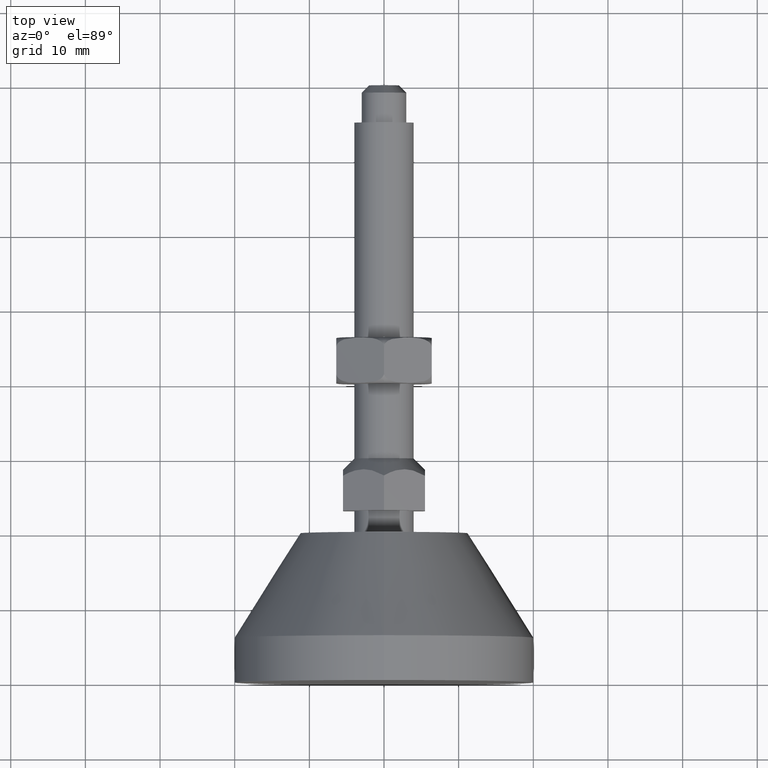
[diagram: clean part render]
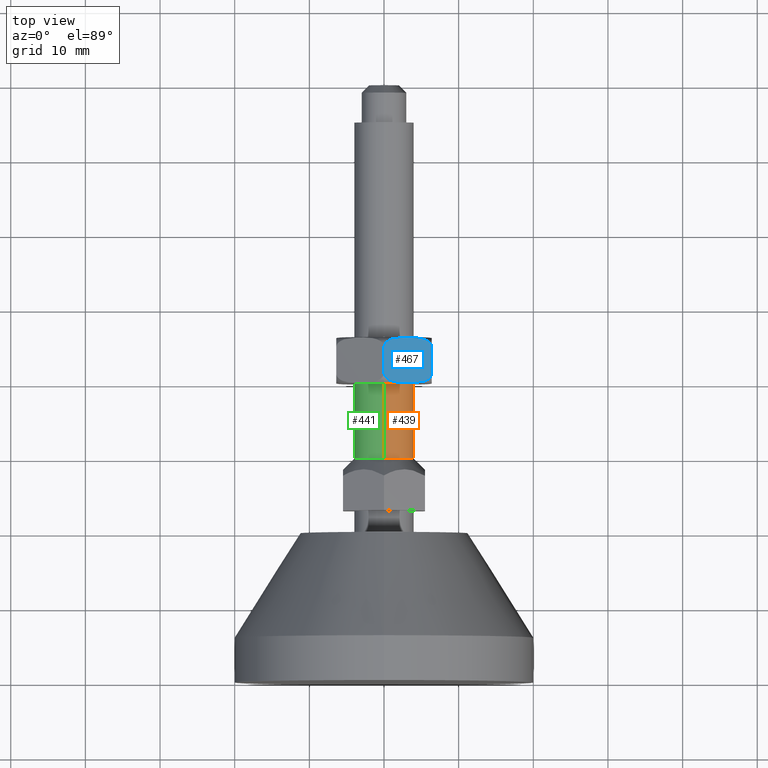
[diagram: same view with three faces highlighted in distinct colors, each labeled with its STEP entity id]
A machine part, top view with three faces highlighted in distinct colors.
Their STEP definitions:

[orange] entity #439 — the highlighted cylindrical surface (edge-blend (fillet) strip) has radius 4 mm, axis along (-0, -1, -0).
#71 = CARTESIAN_POINT ( 'NONE',  ( 4.898587196589412800E-016, 30.00000000000006800, 4.000000000000000000 ) ) ;
#76 = CARTESIAN_POINT ( 'NONE',  ( 0.0000000000000000000, 30.00000000000006800, -4.000000000000000000 ) ) ;
#172 = CARTESIAN_POINT ( 'NONE',  ( 4.898587196589412800E-016, 40.00000000000000000, 4.000000000000000000 ) ) ;
#182 = CARTESIAN_POINT ( 'NONE',  ( 0.0000000000000000000, 40.00000000000000000, -4.000000000000000000 ) ) ;
#249 = VERTEX_POINT ( 'NONE', #182 ) ;
#265 = VERTEX_POINT ( 'NONE', #172 ) ;
#270 = DIRECTION ( 'NONE',  ( -0.0000000000000000000, -1.000000000000000000, -0.0000000000000000000 ) ) ;
#272 = DIRECTION ( 'NONE',  ( 0.0000000000000000000, 0.0000000000000000000, -1.000000000000000000 ) ) ;
#278 = CARTESIAN_POINT ( 'NONE',  ( 0.0000000000000000000, 80.00000000000000000, 0.0000000000000000000 ) ) ;
#439 = ADVANCED_FACE ( 'NONE', ( #656 ), #657, .T. ) ;
#495 = EDGE_CURVE ( 'NONE', #1457, #1462, #726, .T. ) ;
#513 = EDGE_CURVE ( 'NONE', #265, #249, #749, .T. ) ;
#514 = EDGE_CURVE ( 'NONE', #265, #1457, #748, .T. ) ;
#515 = EDGE_CURVE ( 'NONE', #249, #1462, #751, .T. ) ;
#578 = ORIENTED_EDGE ( 'NONE', *, *, #513, .F. ) ;
#579 = ORIENTED_EDGE ( 'NONE', *, *, #514, .T. ) ;
#580 = ORIENTED_EDGE ( 'NONE', *, *, #495, .T. ) ;
#581 = ORIENTED_EDGE ( 'NONE', *, *, #515, .F. ) ;
#656 = FACE_OUTER_BOUND ( 'NONE', #1486, .T. ) ;
#657 = CYLINDRICAL_SURFACE ( 'NONE', #1430, 4.000000000000000000 ) ;
#726 = CIRCLE ( 'NONE', #1008, 4.000000000000000000 ) ;
#748 = LINE ( 'NONE', #1170, #750 ) ;
#749 = CIRCLE ( 'NONE', #1015, 4.000000000000000000 ) ;
#750 = VECTOR ( 'NONE', #1171, 1000.000000000000000 ) ;
#751 = LINE ( 'NONE', #1172, #752 ) ;
#752 = VECTOR ( 'NONE', #1173, 1000.000000000000000 ) ;
#1008 = AXIS2_PLACEMENT_3D ( 'NONE', #1094, #1095, #1096 ) ;
#1015 = AXIS2_PLACEMENT_3D ( 'NONE', #1167, #1168, #1169 ) ;
#1094 = CARTESIAN_POINT ( 'NONE',  ( 0.0000000000000000000, 30.00000000000006800, 0.0000000000000000000 ) ) ;
#1095 = DIRECTION ( 'NONE',  ( -0.0000000000000000000, 1.000000000000000000, -0.0000000000000000000 ) ) ;
#1096 = DIRECTION ( 'NONE',  ( 0.0000000000000000000, 0.0000000000000000000, 1.000000000000000000 ) ) ;
#1167 = CARTESIAN_POINT ( 'NONE',  ( 0.0000000000000000000, 40.00000000000000000, 0.0000000000000000000 ) ) ;
#1168 = DIRECTION ( 'NONE',  ( -0.0000000000000000000, 1.000000000000000000, 0.0000000000000000000 ) ) ;
#1169 = DIRECTION ( 'NONE',  ( 0.0000000000000000000, 0.0000000000000000000, 1.000000000000000000 ) ) ;
#1170 = CARTESIAN_POINT ( 'NONE',  ( 4.898587196589412800E-016, 80.00000000000000000, 4.000000000000000000 ) ) ;
#1171 = DIRECTION ( 'NONE',  ( -0.0000000000000000000, -1.000000000000000000, -0.0000000000000000000 ) ) ;
#1172 = CARTESIAN_POINT ( 'NONE',  ( 0.0000000000000000000, 80.00000000000000000, -4.000000000000000000 ) ) ;
#1173 = DIRECTION ( 'NONE',  ( -0.0000000000000000000, -1.000000000000000000, -0.0000000000000000000 ) ) ;
#1430 = AXIS2_PLACEMENT_3D ( 'NONE', #278, #270, #272 ) ;
#1457 = VERTEX_POINT ( 'NONE', #71 ) ;
#1462 = VERTEX_POINT ( 'NONE', #76 ) ;
#1486 = EDGE_LOOP ( 'NONE', ( #578, #579, #580, #581 ) ) ;

[blue] entity #467 — the highlighted planar face has unit normal (-0.5, 0, -0.866).
#62 = CARTESIAN_POINT ( 'NONE',  ( -8.974535061566394700E-016, 46.19999999999999600, 7.390083445627212200 ) ) ;
#63 = DIRECTION ( 'NONE',  ( -0.0000000000000000000, -1.000000000000000000, -0.0000000000000000000 ) ) ;
#78 = CARTESIAN_POINT ( 'NONE',  ( 6.399999999999999500, 44.83824918976937100, 3.695041722813605700 ) ) ;
#90 = CARTESIAN_POINT ( 'NONE',  ( 3.469446951953614200E-015, 44.83824918976937100, 7.390083445627210400 ) ) ;
#219 = CARTESIAN_POINT ( 'NONE',  ( 3.469446951953614200E-015, 41.36192793528286400, 7.390083445627210400 ) ) ;
#260 = VERTEX_POINT ( 'NONE', #219 ) ;
#292 = AXIS2_PLACEMENT_3D ( 'NONE', #826, #827, #828 ) ;
#319 = B_SPLINE_CURVE_WITH_KNOTS ( 'NONE', 3,
 ( #844, #845, #846, #847, #848, #849, #850, #851, #852, #853, #854, #855, #856, #857, #858, #859, #860, #861, #862, #863, #864, #865, #866, #867, #868, #869 ),
 .UNSPECIFIED., .F., .F.,
 ( 4, 2, 2, 2, 2, 2, 2, 2, 2, 2, 2, 2, 4 ),
 ( 1.969615810174196300E-007, 0.0005331428751887965600, 0.001066088788796575600, 0.001599034702404354600, 0.002131980616012133600, 0.003197872443227695900, 0.004263764270443257800, 0.005329656097658819700, 0.006395547924874383400, 0.006928493838482163000, 0.007461439752089943500, 0.007994385665697724100, 0.008527331579305503700 ),
 .UNSPECIFIED. ) ;
#320 = B_SPLINE_CURVE_WITH_KNOTS ( 'NONE', 3,
 ( #870, #871, #872, #873, #874, #875, #876, #877, #878, #879, #880, #881, #882, #883, #884, #885, #886, #887, #888, #889, #890, #891, #892, #893, #894, #895 ),
 .UNSPECIFIED., .F., .F.,
 ( 4, 2, 2, 2, 2, 2, 2, 2, 2, 2, 2, 2, 4 ),
 ( 1.969615810173592000E-007, 0.0005331428751887974200, 0.001066088788796577500, 0.001599034702404357800, 0.002131980616012137900, 0.003197872443227701100, 0.004263764270443263900, 0.005329656097658826700, 0.006395547924874390300, 0.006928493838482170000, 0.007461439752089949600, 0.007994385665697731000, 0.008527331579305510700 ),
 .UNSPECIFIED. ) ;
#414 = EDGE_LOOP ( 'NONE', ( #567, #568, #569, #570 ) ) ;
#467 = ADVANCED_FACE ( 'NONE', ( #700 ), #825, .F. ) ;
#471 = VERTEX_POINT ( 'NONE', #833 ) ;
#476 = EDGE_CURVE ( 'NONE', #260, #471, #319, .T. ) ;
#477 = EDGE_CURVE ( 'NONE', #1464, #1476, #320, .T. ) ;
#567 = ORIENTED_EDGE ( 'NONE', *, *, #1449, .T. ) ;
#568 = ORIENTED_EDGE ( 'NONE', *, *, #476, .T. ) ;
#569 = ORIENTED_EDGE ( 'NONE', *, *, #1429, .F. ) ;
#570 = ORIENTED_EDGE ( 'NONE', *, *, #477, .T. ) ;
#700 = FACE_OUTER_BOUND ( 'NONE', #414, .T. ) ;
#788 = LINE ( 'NONE', #1412, #790 ) ;
#790 = VECTOR ( 'NONE', #1413, 1000.000000000000000 ) ;
#799 = LINE ( 'NONE', #62, #801 ) ;
#801 = VECTOR ( 'NONE', #63, 1000.000000000000000 ) ;
#825 = PLANE ( 'NONE',  #292 ) ;
#826 = CARTESIAN_POINT ( 'NONE',  ( -8.974535061566394700E-016, 46.19999999999999600, 7.390083445627212200 ) ) ;
#827 = DIRECTION ( 'NONE',  ( -0.4999999999999997800, 0.0000000000000000000, -0.8660254037844388200 ) ) ;
#828 = DIRECTION ( 'NONE',  ( -0.8660254037844387100, 0.0000000000000000000, 0.4999999999999997200 ) ) ;
#833 = CARTESIAN_POINT ( 'NONE',  ( 6.400000000000001200, 41.36192793528286400, 3.695041722813603400 ) ) ;
#844 = CARTESIAN_POINT ( 'NONE',  ( 3.469446951953614200E-015, 41.36192793528286400, 7.390083445627210400 ) ) ;
#845 = CARTESIAN_POINT ( 'NONE',  ( 4.381983780462225500E-015, 41.18154347559625000, 7.390083445627212200 ) ) ;
#846 = CARTESIAN_POINT ( 'NONE',  ( 0.06507658969984339600, 41.00960046993546400, 7.352511459046064100 ) ) ;
#847 = CARTESIAN_POINT ( 'NONE',  ( 0.2589440360060000200, 40.73147158902651200, 7.240582036734099200 ) ) ;
#848 = CARTESIAN_POINT ( 'NONE',  ( 0.3844201074627268700, 40.62238425934111100, 7.168138393101701300 ) ) ;
#849 = CARTESIAN_POINT ( 'NONE',  ( 0.6507202872578585800, 40.44716165216748000, 7.014389912611736800 ) ) ;
#850 = CARTESIAN_POINT ( 'NONE',  ( 0.7934669134545070400, 40.37985952713127300, 6.931975109551191700 ) ) ;
#851 = CARTESIAN_POINT ( 'NONE',  ( 1.086351381744949500, 40.27101402016869300, 6.762878182942245100 ) ) ;
#852 = CARTESIAN_POINT ( 'NONE',  ( 1.234543257111736300, 40.23027069650583300, 6.677319563807513300 ) ) ;
#853 = CARTESIAN_POINT ( 'NONE',  ( 1.682254170809112500, 40.13255372059040100, 6.418833547265202300 ) ) ;
#854 = CARTESIAN_POINT ( 'NONE',  ( 1.984838325867733100, 40.09954443808948100, 6.244136503889591500 ) ) ;
#855 = CARTESIAN_POINT ( 'NONE',  ( 2.593250552940731700, 40.05888817810548400, 5.892869540810734100 ) ) ;
#856 = CARTESIAN_POINT ( 'NONE',  ( 2.898819191362045800, 40.05167530261498100, 5.716449405162283200 ) ) ;
#857 = CARTESIAN_POINT ( 'NONE',  ( 3.508955986825664600, 40.05181555091935800, 5.364186762058866800 ) ) ;
#858 = CARTESIAN_POINT ( 'NONE',  ( 3.814318848180316300, 40.05915011922627400, 5.187885431855242800 ) ) ;
#859 = CARTESIAN_POINT ( 'NONE',  ( 4.423401883536218500, 40.10034535627473700, 4.836231177433681700 ) ) ;
#860 = CARTESIAN_POINT ( 'NONE',  ( 4.728510096859997300, 40.13407262695335500, 4.660076868339231700 ) ) ;
#861 = CARTESIAN_POINT ( 'NONE',  ( 5.176289890584445000, 40.23307329977981100, 4.401551083894744900 ) ) ;
#862 = CARTESIAN_POINT ( 'NONE',  ( 5.323893946578738000, 40.27425663571978700, 4.316331842432963300 ) ) ;
#863 = CARTESIAN_POINT ( 'NONE',  ( 5.613737017440101300, 40.38313661571444900, 4.148990867448406000 ) ) ;
#864 = CARTESIAN_POINT ( 'NONE',  ( 5.756508220530291100, 40.45100393083634300, 4.066561874911758200 ) ) ;
#865 = CARTESIAN_POINT ( 'NONE',  ( 6.021976303338888700, 40.62755502624678200, 3.913293805840959200 ) ) ;
#866 = CARTESIAN_POINT ( 'NONE',  ( 6.144831030292324100, 40.73544452388548400, 3.842363596163175000 ) ) ;
#867 = CARTESIAN_POINT ( 'NONE',  ( 6.336962245836619300, 41.01401249651030400, 3.731436587148947200 ) ) ;
#868 = CARTESIAN_POINT ( 'NONE',  ( 6.399999999999999500, 41.18289118099283300, 3.695041722813610500 ) ) ;
#869 = CARTESIAN_POINT ( 'NONE',  ( 6.400000000000001200, 41.36192793528286400, 3.695041722813603400 ) ) ;
#870 = CARTESIAN_POINT ( 'NONE',  ( 6.399999999999999500, 44.83824918976937100, 3.695041722813605700 ) ) ;
#871 = CARTESIAN_POINT ( 'NONE',  ( 6.399999999999997700, 45.01863364945597100, 3.695041722813610500 ) ) ;
#872 = CARTESIAN_POINT ( 'NONE',  ( 6.334923410300156400, 45.19057665511677200, 3.732613709394756500 ) ) ;
#873 = CARTESIAN_POINT ( 'NONE',  ( 6.141055963994000800, 45.46870553602569500, 3.844543131706720900 ) ) ;
#874 = CARTESIAN_POINT ( 'NONE',  ( 6.015579892537274100, 45.57779286571112500, 3.916986775339117400 ) ) ;
#875 = CARTESIAN_POINT ( 'NONE',  ( 5.749279712742143100, 45.75301547288475500, 4.070735255829085000 ) ) ;
#876 = CARTESIAN_POINT ( 'NONE',  ( 5.606533086545495000, 45.82031759792097600, 4.153150058889630200 ) ) ;
#877 = CARTESIAN_POINT ( 'NONE',  ( 5.313648618255052200, 45.92916310488354300, 4.322246985498577700 ) ) ;
#878 = CARTESIAN_POINT ( 'NONE',  ( 5.165456742888266300, 45.96990642854640200, 4.407805604633306700 ) ) ;
#879 = CARTESIAN_POINT ( 'NONE',  ( 4.717745829190889100, 46.06762340446184800, 4.666291621175618700 ) ) ;
#880 = CARTESIAN_POINT ( 'NONE',  ( 4.415161674132269500, 46.10063268696274700, 4.840988664551229400 ) ) ;
#881 = CARTESIAN_POINT ( 'NONE',  ( 3.806749447059270400, 46.14128894694675900, 5.192255627630084200 ) ) ;
#882 = CARTESIAN_POINT ( 'NONE',  ( 3.501180808637956300, 46.14850182243725400, 5.368675763278537800 ) ) ;
#883 = CARTESIAN_POINT ( 'NONE',  ( 2.891044013174334900, 46.14836157413286300, 5.720938406381952400 ) ) ;
#884 = CARTESIAN_POINT ( 'NONE',  ( 2.585681151819684900, 46.14102700582596100, 5.897239736585577300 ) ) ;
#885 = CARTESIAN_POINT ( 'NONE',  ( 1.976598116463783800, 46.09983176877752000, 6.248893991007141000 ) ) ;
#886 = CARTESIAN_POINT ( 'NONE',  ( 1.671489903140004300, 46.06610449809888800, 6.425048300101589200 ) ) ;
#887 = CARTESIAN_POINT ( 'NONE',  ( 1.223710109415555400, 45.96710382527241700, 6.683574084546074300 ) ) ;
#888 = CARTESIAN_POINT ( 'NONE',  ( 1.076106053421266500, 45.92592048933245500, 6.768793326007858500 ) ) ;
#889 = CARTESIAN_POINT ( 'NONE',  ( 0.7862629825599014600, 45.81704050933777900, 6.936134300992414100 ) ) ;
#890 = CARTESIAN_POINT ( 'NONE',  ( 0.6434917794697121400, 45.74917319421591300, 7.018563293529060900 ) ) ;
#891 = CARTESIAN_POINT ( 'NONE',  ( 0.3780236966611125700, 45.57262209880545400, 7.171831362599859500 ) ) ;
#892 = CARTESIAN_POINT ( 'NONE',  ( 0.2551689697076778300, 45.46473260116674500, 7.242761572277646400 ) ) ;
#893 = CARTESIAN_POINT ( 'NONE',  ( 0.06303775416338383600, 45.18616462854193100, 7.353688581291872400 ) ) ;
#894 = CARTESIAN_POINT ( 'NONE',  ( 2.776385771555761600E-015, 45.01728594405938800, 7.390083445627211300 ) ) ;
#895 = CARTESIAN_POINT ( 'NONE',  ( 3.469446951953614200E-015, 44.83824918976937100, 7.390083445627210400 ) ) ;
#1412 = CARTESIAN_POINT ( 'NONE',  ( 6.400000000000001200, 46.19999999999999600, 3.695041722813608800 ) ) ;
#1413 = DIRECTION ( 'NONE',  ( -0.0000000000000000000, -1.000000000000000000, -0.0000000000000000000 ) ) ;
#1429 = EDGE_CURVE ( 'NONE', #1464, #471, #788, .T. ) ;
#1449 = EDGE_CURVE ( 'NONE', #1476, #260, #799, .T. ) ;
#1464 = VERTEX_POINT ( 'NONE', #78 ) ;
#1476 = VERTEX_POINT ( 'NONE', #90 ) ;

[green] entity #441 — the highlighted cylindrical surface (edge-blend (fillet) strip) has radius 4 mm, axis along (-0, -1, -0).
#71 = CARTESIAN_POINT ( 'NONE',  ( 4.898587196589412800E-016, 30.00000000000006800, 4.000000000000000000 ) ) ;
#76 = CARTESIAN_POINT ( 'NONE',  ( 0.0000000000000000000, 30.00000000000006800, -4.000000000000000000 ) ) ;
#172 = CARTESIAN_POINT ( 'NONE',  ( 4.898587196589412800E-016, 40.00000000000000000, 4.000000000000000000 ) ) ;
#182 = CARTESIAN_POINT ( 'NONE',  ( 0.0000000000000000000, 40.00000000000000000, -4.000000000000000000 ) ) ;
#249 = VERTEX_POINT ( 'NONE', #182 ) ;
#265 = VERTEX_POINT ( 'NONE', #172 ) ;
#441 = ADVANCED_FACE ( 'NONE', ( #660 ), #661, .T. ) ;
#514 = EDGE_CURVE ( 'NONE', #265, #1457, #748, .T. ) ;
#515 = EDGE_CURVE ( 'NONE', #249, #1462, #751, .T. ) ;
#516 = EDGE_CURVE ( 'NONE', #249, #265, #753, .T. ) ;
#518 = EDGE_CURVE ( 'NONE', #1462, #1457, #756, .T. ) ;
#586 = ORIENTED_EDGE ( 'NONE', *, *, #514, .F. ) ;
#587 = ORIENTED_EDGE ( 'NONE', *, *, #516, .F. ) ;
#588 = ORIENTED_EDGE ( 'NONE', *, *, #515, .T. ) ;
#589 = ORIENTED_EDGE ( 'NONE', *, *, #518, .T. ) ;
#660 = FACE_OUTER_BOUND ( 'NONE', #1481, .T. ) ;
#661 = CYLINDRICAL_SURFACE ( 'NONE', #1444, 4.000000000000000000 ) ;
#748 = LINE ( 'NONE', #1170, #750 ) ;
#750 = VECTOR ( 'NONE', #1171, 1000.000000000000000 ) ;
#751 = LINE ( 'NONE', #1172, #752 ) ;
#752 = VECTOR ( 'NONE', #1173, 1000.000000000000000 ) ;
#753 = CIRCLE ( 'NONE', #1016, 4.000000000000000000 ) ;
#756 = CIRCLE ( 'NONE', #1018, 4.000000000000000000 ) ;
#1016 = AXIS2_PLACEMENT_3D ( 'NONE', #1174, #1175, #1176 ) ;
#1018 = AXIS2_PLACEMENT_3D ( 'NONE', #1180, #1181, #1182 ) ;
#1170 = CARTESIAN_POINT ( 'NONE',  ( 4.898587196589412800E-016, 80.00000000000000000, 4.000000000000000000 ) ) ;
#1171 = DIRECTION ( 'NONE',  ( -0.0000000000000000000, -1.000000000000000000, -0.0000000000000000000 ) ) ;
#1172 = CARTESIAN_POINT ( 'NONE',  ( 0.0000000000000000000, 80.00000000000000000, -4.000000000000000000 ) ) ;
#1173 = DIRECTION ( 'NONE',  ( -0.0000000000000000000, -1.000000000000000000, -0.0000000000000000000 ) ) ;
#1174 = CARTESIAN_POINT ( 'NONE',  ( 0.0000000000000000000, 40.00000000000000000, 0.0000000000000000000 ) ) ;
#1175 = DIRECTION ( 'NONE',  ( -0.0000000000000000000, 1.000000000000000000, 0.0000000000000000000 ) ) ;
#1176 = DIRECTION ( 'NONE',  ( 0.0000000000000000000, 0.0000000000000000000, 1.000000000000000000 ) ) ;
#1180 = CARTESIAN_POINT ( 'NONE',  ( 0.0000000000000000000, 30.00000000000006800, 0.0000000000000000000 ) ) ;
#1181 = DIRECTION ( 'NONE',  ( -0.0000000000000000000, 1.000000000000000000, -0.0000000000000000000 ) ) ;
#1182 = DIRECTION ( 'NONE',  ( 0.0000000000000000000, 0.0000000000000000000, 1.000000000000000000 ) ) ;
#1304 = CARTESIAN_POINT ( 'NONE',  ( 0.0000000000000000000, 80.00000000000000000, 0.0000000000000000000 ) ) ;
#1326 = DIRECTION ( 'NONE',  ( -0.0000000000000000000, -1.000000000000000000, -0.0000000000000000000 ) ) ;
#1346 = DIRECTION ( 'NONE',  ( 0.0000000000000000000, 0.0000000000000000000, -1.000000000000000000 ) ) ;
#1444 = AXIS2_PLACEMENT_3D ( 'NONE', #1304, #1326, #1346 ) ;
#1457 = VERTEX_POINT ( 'NONE', #71 ) ;
#1462 = VERTEX_POINT ( 'NONE', #76 ) ;
#1481 = EDGE_LOOP ( 'NONE', ( #586, #587, #588, #589 ) ) ;